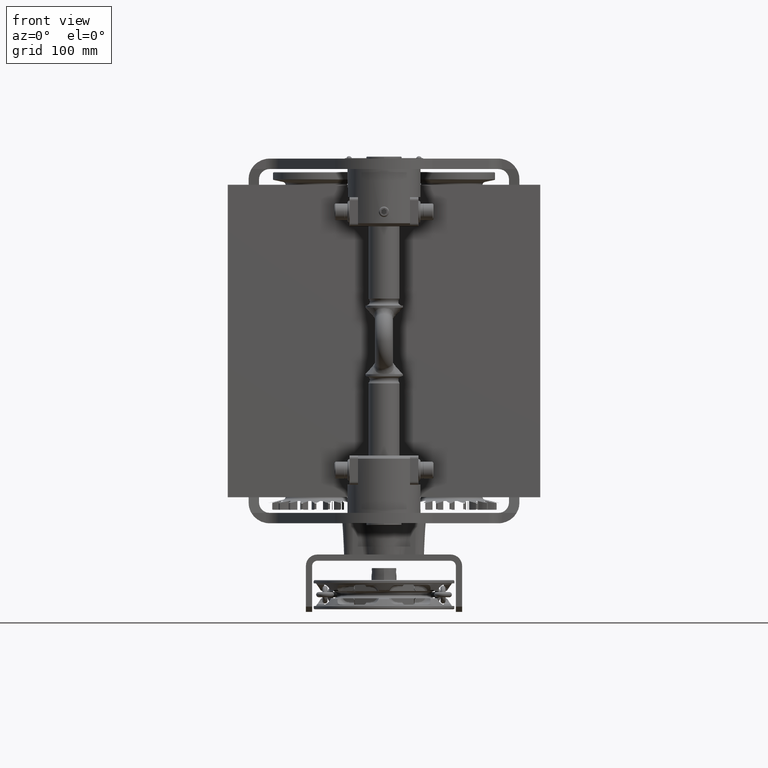
[diagram: clean part render]
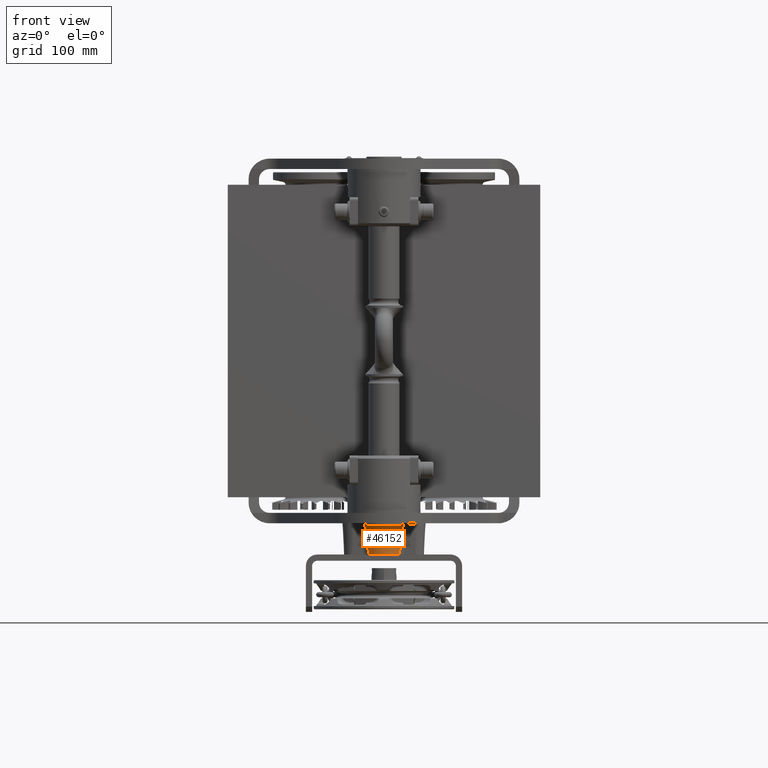
[diagram: same view with one face highlighted and labeled with its STEP entity id]
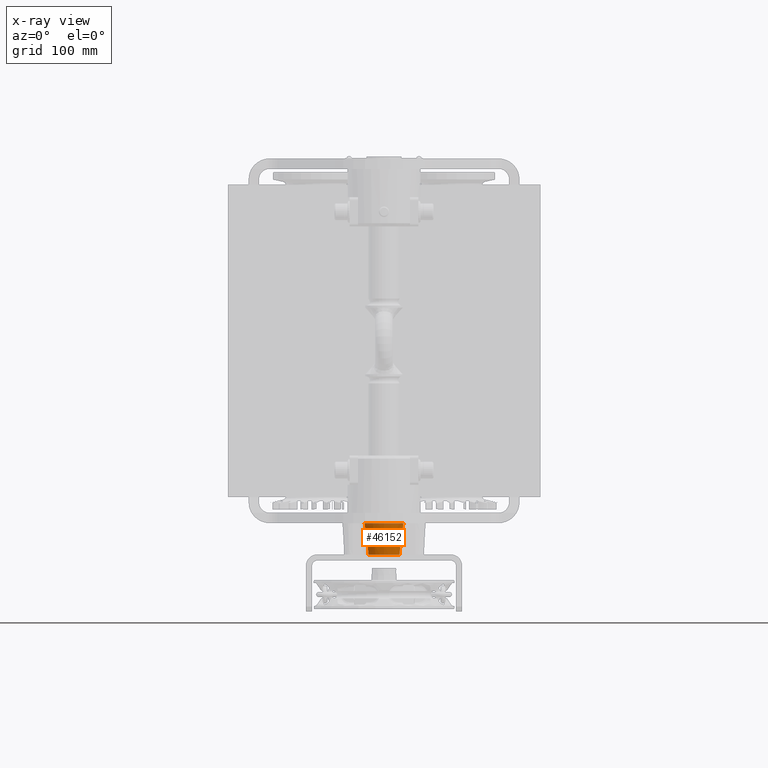
[diagram: x-ray of the same camera — body ghosted, the highlighted face saturated]
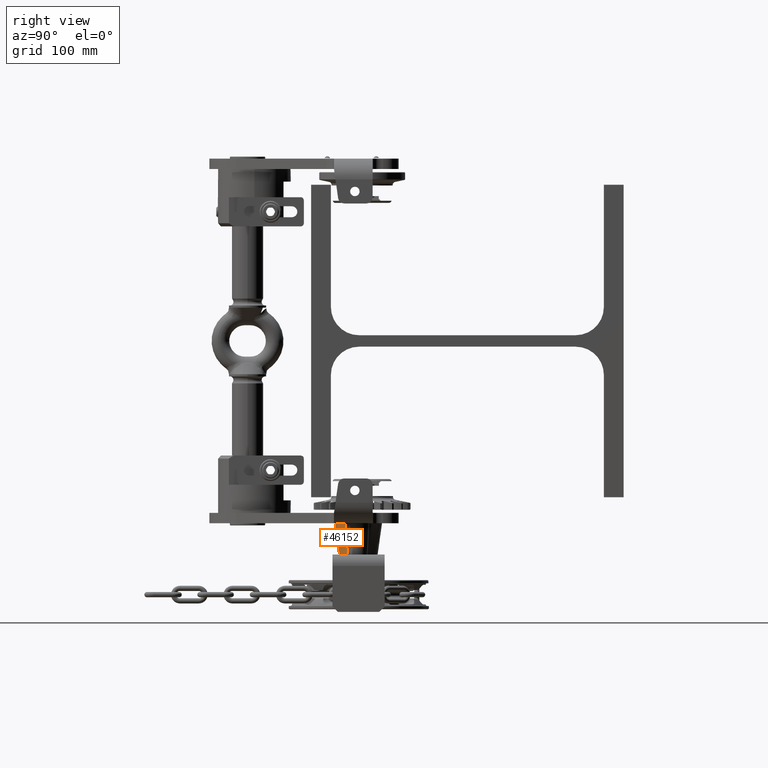
[diagram: same view with one face highlighted and labeled with its STEP entity id]
A machine part, front view. The second image highlights one B-rep face of the part: STEP entity #46152.
The next image is the same camera in x-ray: the body ghosted, the highlighted face saturated — about 6% of this face is hidden behind the body in this view.
A second angle (right view) of the same face is appended — the face is thin or edge-on in the first view.
In plain terms, the highlighted conical surface has half-angle 8 deg.
Its self-contained STEP definition (entity closure, byte-faithful):
#1148 = CARTESIAN_POINT ( 'NONE',  ( 17.31591464386684400, -116.4699845300393000, -185.0004787063186300 ) ) ;
#2716 = CARTESIAN_POINT ( 'NONE',  ( 1.791515134364355600E-013, -104.4200000000001600, -174.9999999999902800 ) ) ;
#2742 = B_SPLINE_CURVE_WITH_KNOTS ( 'NONE', 3,
 ( #34726, #42975, #1148, #17604 ),
 .UNSPECIFIED., .F., .F.,
 ( 4, 4 ),
 ( 0.0000000000000000000, 0.03030578997070199100 ),
 .UNSPECIFIED. ) ;
#5766 = ORIENTED_EDGE ( 'NONE', *, *, #40018, .T. ) ;
#6573 = AXIS2_PLACEMENT_3D ( 'NONE', #2716, #27846, #32054 ) ;
#6645 = AXIS2_PLACEMENT_3D ( 'NONE', #24024, #32458, #40932 ) ;
#12078 = CARTESIAN_POINT ( 'NONE',  ( 1.791515134364355600E-013, -104.4200000000001600, -174.9999999999902800 ) ) ;
#12339 = CARTESIAN_POINT ( 'NONE',  ( -18.62117377824490200, -117.0494056519063100, -174.9999999999902800 ) ) ;
#15054 = ORIENTED_EDGE ( 'NONE', *, *, #27782, .T. ) ;
#15828 = FACE_OUTER_BOUND ( 'NONE', #47767, .T. ) ;
#17604 = CARTESIAN_POINT ( 'NONE',  ( 18.62117377824527500, -117.0494056519063000, -174.9999999999902800 ) ) ;
#18217 = ORIENTED_EDGE ( 'NONE', *, *, #24463, .T. ) ;
#20029 = CIRCLE ( 'NONE', #6573, 22.50000000000006000 ) ;
#23049 = AXIS2_PLACEMENT_3D ( 'NONE', #12078, #29234, #38224 ) ;
#24024 = CARTESIAN_POINT ( 'NONE',  ( 1.777442606891367900E-013, -104.4200000000001600, -204.9999999999902800 ) ) ;
#24463 = EDGE_CURVE ( 'NONE', #33483, #42054, #39495, .T. ) ;
#25442 = CARTESIAN_POINT ( 'NONE',  ( -14.70734214235534100, -115.2823438472748300, -204.9999999999902800 ) ) ;
#27782 = EDGE_CURVE ( 'NONE', #35484, #33483, #20029, .T. ) ;
#27846 = DIRECTION ( 'NONE',  ( -4.690842490996001500E-017, 9.340314967698369100E-018, -1.000000000000000000 ) ) ;
#29234 = DIRECTION ( 'NONE',  ( 4.690842490996001500E-017, -9.340314967698369100E-018, 1.000000000000000000 ) ) ;
#29892 = CARTESIAN_POINT ( 'NONE',  ( 14.70734214235570800, -115.2823438472748200, -204.9999999999902800 ) ) ;
#31628 = CARTESIAN_POINT ( 'NONE',  ( -18.62117377824490200, -117.0494056519063100, -174.9999999999902800 ) ) ;
#32054 = DIRECTION ( 'NONE',  ( -1.000000000000000000, 0.0000000000000000000, 0.0000000000000000000 ) ) ;
#32186 = CARTESIAN_POINT ( 'NONE',  ( 18.62117377824527500, -117.0494056519063000, -174.9999999999902800 ) ) ;
#32458 = DIRECTION ( 'NONE',  ( -4.690842490996001500E-017, 9.340314967698369100E-018, -1.000000000000000000 ) ) ;
#33483 = VERTEX_POINT ( 'NONE', #31628 ) ;
#33710 = CARTESIAN_POINT ( 'NONE',  ( -17.31591461655390100, -116.4699845179149100, -185.0004789155783800 ) ) ;
#34726 = CARTESIAN_POINT ( 'NONE',  ( 14.70734214235570800, -115.2823438472748200, -204.9999999999902800 ) ) ;
#34945 = CONICAL_SURFACE ( 'NONE', #23049, 22.50000000000006000, 0.1396263401595466700 ) ;
#35484 = VERTEX_POINT ( 'NONE', #32186 ) ;
#38224 = DIRECTION ( 'NONE',  ( -1.000000000000000000, 0.0000000000000000000, 0.0000000000000000000 ) ) ;
#39495 = B_SPLINE_CURVE_WITH_KNOTS ( 'NONE', 3,
 ( #12339, #33710, #41617, #25442 ),
 .UNSPECIFIED., .F., .F.,
 ( 4, 4 ),
 ( 0.0000000000000000000, 0.03030579107543815400 ),
 .UNSPECIFIED. ) ;
#40018 = EDGE_CURVE ( 'NONE', #42743, #35484, #2742, .T. ) ;
#40932 = DIRECTION ( 'NONE',  ( -1.000000000000000000, 0.0000000000000000000, 0.0000000000000000000 ) ) ;
#41252 = EDGE_CURVE ( 'NONE', #42743, #42054, #48257, .T. ) ;
#41617 = CARTESIAN_POINT ( 'NONE',  ( -16.01105807228009000, -115.8826341709158800, -195.0005501990933400 ) ) ;
#42054 = VERTEX_POINT ( 'NONE', #50999 ) ;
#42743 = VERTEX_POINT ( 'NONE', #29892 ) ;
#42975 = CARTESIAN_POINT ( 'NONE',  ( 16.01105803244264800, -115.8826341525727300, -195.0005505046461300 ) ) ;
#46152 = ADVANCED_FACE ( 'NONE', ( #15828 ), #34945, .T. ) ;
#47653 = ORIENTED_EDGE ( 'NONE', *, *, #41252, .F. ) ;
#47767 = EDGE_LOOP ( 'NONE', ( #47653, #5766, #15054, #18217 ) ) ;
#48257 = CIRCLE ( 'NONE', #6645, 18.28377495892829400 ) ;
#50999 = CARTESIAN_POINT ( 'NONE',  ( -14.70734214235534100, -115.2823438472748300, -204.9999999999902800 ) ) ;